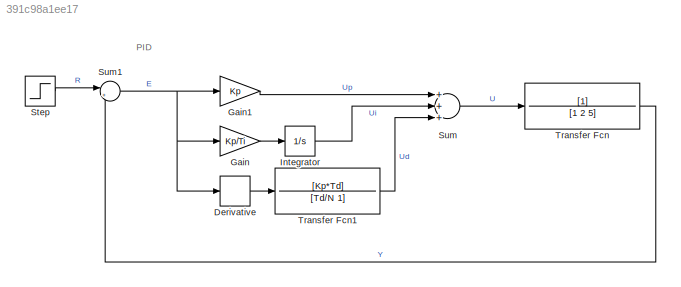
MODEL slx_391c98a1ee17
KIND model
CONFIG AbsTol = auto
CONFIG EnableMultiTasking = off
CONFIG FixedStep = auto
CONFIG MaxStep = auto
CONFIG MinStep = auto
CONFIG RelTol = 1e-3
CONFIG SampleTimeConstraint = Unconstrained
CONFIG Solver = VariableStepAuto
CONFIG SolverName = VariableStepAuto
CONFIG StartTime = 0.0
CONFIG StopTime = Tmax
BLOCK [Derivative] Derivative
BLOCK [Gain] Gain
  Gain = Kp/Ti
  OutDataTypeStr = Inherit: Inherit via internal rule
  ParamDataTypeStr = Inherit: Inherit via internal rule
  SaturateOnIntegerOverflow = off
BLOCK [Gain] Gain1
  Gain = Kp
  OutDataTypeStr = Inherit: Inherit via internal rule
  ParamDataTypeStr = Inherit: Inherit via internal rule
  SaturateOnIntegerOverflow = off
BLOCK [Integrator] Integrator
  Ports = [1, 1]
BLOCK [Step] Step
  SampleTime = 0
BLOCK [Sum] Sum
  InputSameDT = off
  Inputs = +++
  OutDataTypeStr = Inherit: Inherit via internal rule
  Ports = [3, 1]
  SaturateOnIntegerOverflow = off
BLOCK [Sum] Sum1
  IconShape = round
  InputSameDT = off
  Inputs = |+-
  OutDataTypeStr = Inherit: Inherit via internal rule
  Ports = [2, 1]
  SaturateOnIntegerOverflow = off
BLOCK [TransferFcn] Transfer Fcn
  Denominator = [1 2 5]
BLOCK [TransferFcn] Transfer Fcn1
  Denominator = [Td/N 1]
  Numerator = [Kp*Td]
ANNOTATION (root): PID
LINE Derivative:1 -> Transfer Fcn1:1
LINE Gain1:1 -> Sum:1
LINE Gain:1 -> Integrator:1
LINE Integrator:1 -> Sum:2
LINE Step:1 -> Sum1:1
NET Sum1:1 -> Derivative:1, Gain1:1, Gain:1
LINE Sum:1 -> Transfer Fcn:1
LINE Transfer Fcn1:1 -> Sum:3
LINE Transfer Fcn:1 -> Sum1:2
note: NET lines group one-source signal fan-out (src -> all destinations, sorted); 1:1 wires keep LINE
